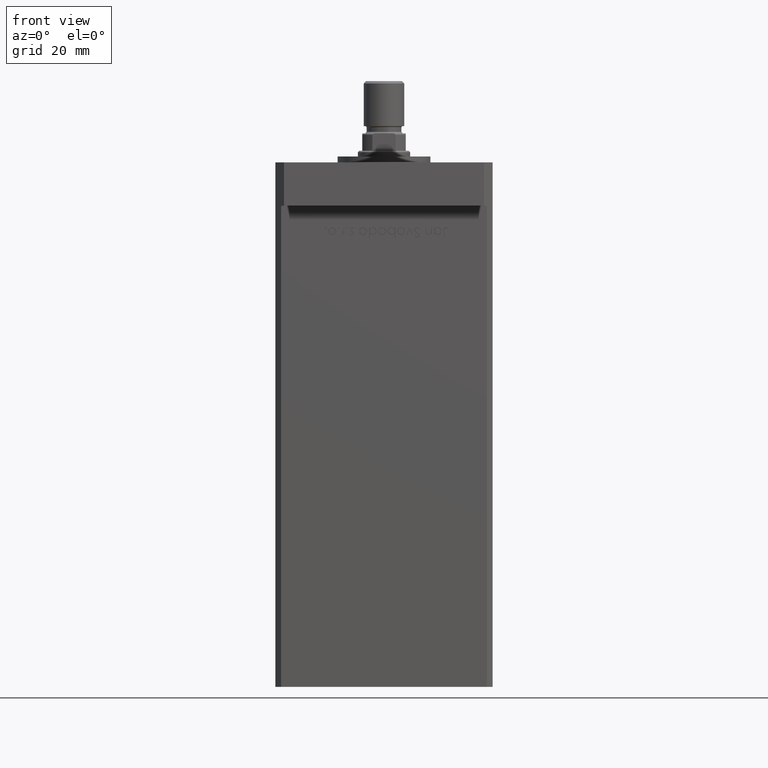
[diagram: clean part render]
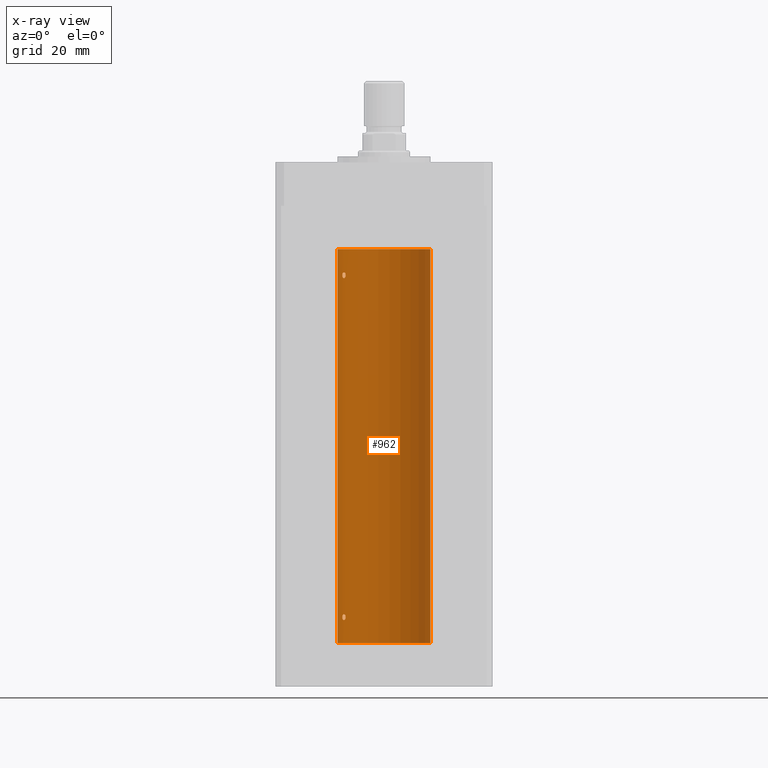
[diagram: x-ray — body ghosted, one internal face saturated and labeled with its STEP entity id]
A machine part, front view, then the same camera in x-ray: the body is ghosted and one INTERNAL B-rep face — a face not visible from any outside direction — is saturated and labeled: STEP entity #962.
In plain terms, the highlighted cylindrical surface (partial cylindrical patch) has radius 16 mm, axis along (-0, -0, -1).
Its self-contained STEP definition (entity closure, byte-faithful):
#52 = DIRECTION ( 'NONE',  ( -1.000000000000000000, 0.000000000000000000, 0.000000000000000000 ) ) ;
#415 = EDGE_LOOP ( 'NONE', ( #49385, #48213 ) ) ;
#584 = FACE_OUTER_BOUND ( 'NONE', #13788, .T. ) ;
#811 = CARTESIAN_POINT ( 'NONE',  ( -13.77582987033440709, 8.139210687602719929, 126.0021105458418162 ) ) ;
#962 = ADVANCED_FACE ( 'NONE', ( #584, #41848, #43123 ), #53876, .F. ) ;
#1688 = CARTESIAN_POINT ( 'NONE',  ( -13.24976519864029179, 8.969293778684573226, 127.2815352263351514 ) ) ;
#2091 = EDGE_CURVE ( 'NONE', #31538, #31573, #11436, .T. ) ;
#2484 = CARTESIAN_POINT ( 'NONE',  ( -13.22875655532296157, 8.999999999999994671, 127.1406447609177661 ) ) ;
#4109 = CARTESIAN_POINT ( 'NONE',  ( -13.22875655532295625, 8.999999999999994671, 126.9295656223616220 ) ) ;
#4781 = CARTESIAN_POINT ( 'NONE',  ( -14.38749456993816445, 6.999999999999997335, 9.142625441524202756 ) ) ;
#5023 = CARTESIAN_POINT ( 'NONE',  ( -14.37250282441143767, 7.031013007322936659, 8.716856996037261496 ) ) ;
#5185 = CARTESIAN_POINT ( 'NONE',  ( -13.49759407097375075, 8.592283911330223845, 126.1840991521276862 ) ) ;
#5568 = CARTESIAN_POINT ( 'NONE',  ( -14.27547848986622014, 7.226527013162185931, 8.352555730181528304 ) ) ;
#5788 = CARTESIAN_POINT ( 'NONE',  ( -14.27521483392928836, 7.227035590538638310, 127.6478598706881371 ) ) ;
#5850 = CARTESIAN_POINT ( 'NONE',  ( -13.70481462797718031, 8.258098555717506173, 8.025997477291133109 ) ) ;
#6597 = CARTESIAN_POINT ( 'NONE',  ( -13.37741691572086111, 8.778212469423007036, 127.6408828602271512 ) ) ;
#7414 = EDGE_CURVE ( 'NONE', #31391, #25424, #52723, .T. ) ;
#7662 = DIRECTION ( 'NONE',  ( -0.000000000000000000, -0.000000000000000000, -1.000000000000000000 ) ) ;
#8481 = CARTESIAN_POINT ( 'NONE',  ( -13.32426099938365383, 8.858246960865844954, 126.4688748775329969 ) ) ;
#8787 = CARTESIAN_POINT ( 'NONE',  ( 0.000000000000000000, 0.000000000000000000, 136.0000000000000000 ) ) ;
#8890 = CARTESIAN_POINT ( 'NONE',  ( -13.91892506969882959, 7.891973478508852224, 10.00155212263243953 ) ) ;
#9018 = CARTESIAN_POINT ( 'NONE',  ( -13.91838063522421010, 7.892966471903945624, 125.9981483133086897 ) ) ;
#9131 = CARTESIAN_POINT ( 'NONE',  ( -13.98699950016872151, 7.770591669637119558, 8.018476816648481886 ) ) ;
#9335 = EDGE_CURVE ( 'NONE', #25424, #31391, #44169, .T. ) ;
#9585 = AXIS2_PLACEMENT_3D ( 'NONE', #33535, #22591, #51263 ) ;
#9675 = CARTESIAN_POINT ( 'NONE',  ( -13.26838749541400198, 8.941532915076040311, 8.656217793921369363 ) ) ;
#11436 = B_SPLINE_CURVE_WITH_KNOTS ( 'NONE', 3,
 ( #35548, #2484, #1688, #27099, #6597, #35288, #47039, #51953, #26282, #43760, #39391, #5788, #14529, #35822, #30917, #39647 ),
 .UNSPECIFIED., .F., .F.,
 ( 4, 2, 2, 2, 2, 2, 2, 4 ),
 ( 0.003377672193071779884, 0.003799209865779855366, 0.004220747538487930849, 0.005063822883904134722, 0.005485360556612237093, 0.005906898229320339463, 0.006328435902028442701, 0.006749973574736545072 ),
 .UNSPECIFIED. ) ;
#11824 = CARTESIAN_POINT ( 'NONE',  ( -16.00000000000000000, 0.000000000000000000, 136.0000000000000000 ) ) ;
#12642 = CARTESIAN_POINT ( 'NONE',  ( -14.38749456993815912, 6.999999999999998224, 127.0000000000000000 ) ) ;
#12830 = CARTESIAN_POINT ( 'NONE',  ( 16.00000000000000000, 1.959434878635765131E-15, 136.0000000000000000 ) ) ;
#13075 = LINE ( 'NONE', #45869, #25133 ) ;
#13116 = CARTESIAN_POINT ( 'NONE',  ( -14.38749456993815912, 6.999999999999998224, 127.0000000000000000 ) ) ;
#13788 = EDGE_LOOP ( 'NONE', ( #33389, #29757, #31555, #44556 ) ) ;
#14051 = CARTESIAN_POINT ( 'NONE',  ( -14.11621438951177332, 7.533308783217010252, 8.106571071839512754 ) ) ;
#14529 = CARTESIAN_POINT ( 'NONE',  ( -14.31650799088418147, 7.144337649771908438, 127.5355226273736662 ) ) ;
#14589 = CARTESIAN_POINT ( 'NONE',  ( -13.32426099938365027, 8.858246960865852060, 8.468874877532968526 ) ) ;
#16280 = CARTESIAN_POINT ( 'NONE',  ( -13.22875655532295447, 8.999999999999996447, 9.000000000000000000 ) ) ;
#16611 = VERTEX_POINT ( 'NONE', #12830 ) ;
#16952 = CARTESIAN_POINT ( 'NONE',  ( -13.25390108270225120, 8.962947079338391632, 126.7214357623584817 ) ) ;
#18148 = CARTESIAN_POINT ( 'NONE',  ( -13.56386909142669950, 8.487613976483636691, 8.118224297996075478 ) ) ;
#18425 = CARTESIAN_POINT ( 'NONE',  ( -13.25390108270225298, 8.962947079338388079, 8.721435762358455079 ) ) ;
#19026 = CARTESIAN_POINT ( 'NONE',  ( -14.38749456993815912, 6.999999999999997335, 9.000000000000000000 ) ) ;
#19289 = DIRECTION ( 'NONE',  ( -0.000000000000000000, 0.000000000000000000, 1.000000000000000000 ) ) ;
#20925 = CARTESIAN_POINT ( 'NONE',  ( -13.70792461986390620, 8.256614593260307444, 9.996621535642271184 ) ) ;
#21064 = CARTESIAN_POINT ( 'NONE',  ( -14.27547848986622370, 7.226527013162184154, 126.3525557301815354 ) ) ;
#21190 = CARTESIAN_POINT ( 'NONE',  ( -13.37741691572085934, 8.778212469423014142, 9.640882860227099727 ) ) ;
#21698 = CARTESIAN_POINT ( 'NONE',  ( -13.77582987033441064, 8.139210687602712824, 8.002110545841816247 ) ) ;
#21852 = CARTESIAN_POINT ( 'NONE',  ( -13.26838749541400908, 8.941532915076043864, 126.6562177939213854 ) ) ;
#22591 = DIRECTION ( 'NONE',  ( -0.000000000000000000, 0.000000000000000000, 1.000000000000000000 ) ) ;
#22875 = B_SPLINE_CURVE_WITH_KNOTS ( 'NONE', 3,
 ( #13116, #29781, #46440, #24895, #21064, #37726, #33078, #29249, #9018, #811, #42338, #42607, #5185, #45912, #8481, #21852, #16952, #41539, #4109, #25167 ),
 .UNSPECIFIED., .F., .F.,
 ( 4, 2, 2, 2, 2, 2, 2, 2, 2, 4 ),
 ( 0.000000000000000000, 0.0004222090241339633240, 0.0008444180482679266480, 0.001266627072401889809, 0.001688836096535853296, 0.002111045120669816783, 0.002533254144803779619, 0.002955463168937742888, 0.003166567681004761603, 0.003377672193071779884 ),
 .UNSPECIFIED. ) ;
#23202 = CARTESIAN_POINT ( 'NONE',  ( 16.00000000000000000, 1.959434878635765131E-15, 0.000000000000000000 ) ) ;
#24757 = ORIENTED_EDGE ( 'NONE', *, *, #2091, .F. ) ;
#24895 = CARTESIAN_POINT ( 'NONE',  ( -14.31660136508398828, 7.144151923086063505, 126.4646217954444580 ) ) ;
#25037 = CARTESIAN_POINT ( 'NONE',  ( -14.31650799088418324, 7.144337649771912879, 9.535522627373689275 ) ) ;
#25123 = DIRECTION ( 'NONE',  ( -0.000000000000000000, -0.000000000000000000, -1.000000000000000000 ) ) ;
#25133 = VECTOR ( 'NONE', #25123, 1000.000000000000000 ) ;
#25167 = CARTESIAN_POINT ( 'NONE',  ( -13.22875655532295802, 8.999999999999996447, 127.0000000000000000 ) ) ;
#25424 = VERTEX_POINT ( 'NONE', #42011 ) ;
#25819 = CARTESIAN_POINT ( 'NONE',  ( -13.55800260393082546, 8.498809056167521803, 9.903643446210175227 ) ) ;
#26282 = CARTESIAN_POINT ( 'NONE',  ( -13.98878315975728803, 7.767347947480344850, 127.9805461432612645 ) ) ;
#26344 = CARTESIAN_POINT ( 'NONE',  ( -14.31660136508399184, 7.144151923086058176, 8.464621795444474017 ) ) ;
#27099 = CARTESIAN_POINT ( 'NONE',  ( -13.32457971225032622, 8.857769707964648020, 127.5319996627465571 ) ) ;
#29020 = DIRECTION ( 'NONE',  ( -0.000000000000000000, -0.000000000000000000, -1.000000000000000000 ) ) ;
#29249 = CARTESIAN_POINT ( 'NONE',  ( -13.98699950016872151, 7.770591669637114229, 126.0184768166484588 ) ) ;
#29388 = CARTESIAN_POINT ( 'NONE',  ( -13.24976519864029179, 8.969293778684576779, 9.281535226335156707 ) ) ;
#29757 = ORIENTED_EDGE ( 'NONE', *, *, #43268, .T. ) ;
#29781 = CARTESIAN_POINT ( 'NONE',  ( -14.38749456993816267, 6.999999999999999112, 126.8571474096354450 ) ) ;
#30711 = CARTESIAN_POINT ( 'NONE',  ( -13.91838063522420832, 7.892966471903941184, 7.998148313308679036 ) ) ;
#30917 = CARTESIAN_POINT ( 'NONE',  ( -14.38749456993815734, 6.999999999999997335, 127.1426254415242454 ) ) ;
#31007 = CIRCLE ( 'NONE', #43213, 16.00000000000000000 ) ;
#31249 = CARTESIAN_POINT ( 'NONE',  ( -13.22875655532295447, 8.999999999999996447, 9.000000000000000000 ) ) ;
#31391 = VERTEX_POINT ( 'NONE', #19026 ) ;
#31538 = VERTEX_POINT ( 'NONE', #42933 ) ;
#31555 = ORIENTED_EDGE ( 'NONE', *, *, #34973, .T. ) ;
#31573 = VERTEX_POINT ( 'NONE', #12642 ) ;
#31752 = EDGE_CURVE ( 'NONE', #16611, #35381, #41254, .T. ) ;
#32035 = ORIENTED_EDGE ( 'NONE', *, *, #33043, .F. ) ;
#32943 = CARTESIAN_POINT ( 'NONE',  ( -13.98878315975729159, 7.767347947480346626, 9.980546143261280534 ) ) ;
#33043 = EDGE_CURVE ( 'NONE', #31573, #31538, #22875, .T. ) ;
#33078 = CARTESIAN_POINT ( 'NONE',  ( -14.11621438951177687, 7.533308783217008475, 126.1065710718394826 ) ) ;
#33389 = ORIENTED_EDGE ( 'NONE', *, *, #31752, .F. ) ;
#33535 = CARTESIAN_POINT ( 'NONE',  ( 0.000000000000000000, 0.000000000000000000, 136.0000000000000000 ) ) ;
#34800 = CARTESIAN_POINT ( 'NONE',  ( -13.22875655532295092, 8.999999999999994671, 8.929565622361636201 ) ) ;
#34973 = EDGE_CURVE ( 'NONE', #42892, #36695, #13075, .T. ) ;
#35288 = CARTESIAN_POINT ( 'NONE',  ( -13.55800260393081835, 8.498809056167509368, 127.9036434462101681 ) ) ;
#35350 = CARTESIAN_POINT ( 'NONE',  ( -14.38749456993815556, 6.999999999999997335, 8.857147409635411250 ) ) ;
#35381 = VERTEX_POINT ( 'NONE', #23202 ) ;
#35548 = CARTESIAN_POINT ( 'NONE',  ( -13.22875655532295802, 8.999999999999996447, 127.0000000000000000 ) ) ;
#35822 = CARTESIAN_POINT ( 'NONE',  ( -14.37227256866306213, 7.031482256185711321, 127.2844572409764794 ) ) ;
#36695 = VERTEX_POINT ( 'NONE', #50479 ) ;
#36755 = DIRECTION ( 'NONE',  ( 1.000000000000000000, 0.000000000000000000, 0.000000000000000000 ) ) ;
#37047 = CARTESIAN_POINT ( 'NONE',  ( -14.37227256866306213, 7.031482256185707769, 9.284457240976479397 ) ) ;
#37726 = CARTESIAN_POINT ( 'NONE',  ( -14.17528142432533755, 7.421143801852455368, 126.1739430735386520 ) ) ;
#37850 = CARTESIAN_POINT ( 'NONE',  ( -14.17576283486774535, 7.420212263225985261, 9.825253034304354927 ) ) ;
#38116 = CARTESIAN_POINT ( 'NONE',  ( -14.38749456993815912, 6.999999999999997335, 9.000000000000000000 ) ) ;
#38363 = CARTESIAN_POINT ( 'NONE',  ( -13.23400746336172951, 8.992294519018086518, 8.857814559023015732 ) ) ;
#38624 = CARTESIAN_POINT ( 'NONE',  ( -13.49759407097374897, 8.592283911330223845, 8.184099152127670251 ) ) ;
#39391 = CARTESIAN_POINT ( 'NONE',  ( -14.17576283486774891, 7.420212263225987925, 127.8252530343043958 ) ) ;
#39647 = CARTESIAN_POINT ( 'NONE',  ( -14.38749456993815912, 6.999999999999998224, 127.0000000000000000 ) ) ;
#41254 = LINE ( 'NONE', #49451, #47709 ) ;
#41539 = CARTESIAN_POINT ( 'NONE',  ( -13.23400746336172240, 8.992294519018086518, 126.8578145590230406 ) ) ;
#41834 = CIRCLE ( 'NONE', #9585, 16.00000000000000000 ) ;
#41848 = FACE_BOUND ( 'NONE', #415, .T. ) ;
#42011 = CARTESIAN_POINT ( 'NONE',  ( -13.22875655532295447, 8.999999999999996447, 9.000000000000000000 ) ) ;
#42206 = CARTESIAN_POINT ( 'NONE',  ( -14.27521483392929014, 7.227035590538633869, 9.647859870688195727 ) ) ;
#42338 = CARTESIAN_POINT ( 'NONE',  ( -13.70481462797717676, 8.258098555717509726, 126.0259974772911562 ) ) ;
#42607 = CARTESIAN_POINT ( 'NONE',  ( -13.56386909142669772, 8.487613976483636691, 126.1182242979960790 ) ) ;
#42892 = VERTEX_POINT ( 'NONE', #11824 ) ;
#42933 = CARTESIAN_POINT ( 'NONE',  ( -13.22875655532295802, 8.999999999999996447, 127.0000000000000000 ) ) ;
#43123 = FACE_BOUND ( 'NONE', #52668, .T. ) ;
#43213 = AXIS2_PLACEMENT_3D ( 'NONE', #44948, #19289, #36755 ) ;
#43268 = EDGE_CURVE ( 'NONE', #16611, #42892, #41834, .T. ) ;
#43760 = CARTESIAN_POINT ( 'NONE',  ( -14.11618354197461400, 7.533333301880474231, 127.8932076519334373 ) ) ;
#44169 = B_SPLINE_CURVE_WITH_KNOTS ( 'NONE', 3,
 ( #16280, #46315, #29388, #49875, #21190, #25819, #20925, #8890, #32943, #50140, #37850, #42206, #25037, #37047, #4781, #38116 ),
 .UNSPECIFIED., .F., .F.,
 ( 4, 2, 2, 2, 2, 2, 2, 4 ),
 ( 0.003377672193071777282, 0.003799209865779874882, 0.004220747538487972482, 0.005063822883904168549, 0.005485360556612268318, 0.005906898229320367219, 0.006328435902028466120, 0.006749973574736565889 ),
 .UNSPECIFIED. ) ;
#44556 = ORIENTED_EDGE ( 'NONE', *, *, #50431, .F. ) ;
#44948 = CARTESIAN_POINT ( 'NONE',  ( 0.000000000000000000, 0.000000000000000000, 0.000000000000000000 ) ) ;
#45869 = CARTESIAN_POINT ( 'NONE',  ( -16.00000000000000000, 0.000000000000000000, 136.0000000000000000 ) ) ;
#45912 = CARTESIAN_POINT ( 'NONE',  ( -13.37674940693422876, 8.779234808442867077, 126.3602441571267718 ) ) ;
#46046 = AXIS2_PLACEMENT_3D ( 'NONE', #8787, #29020, #52 ) ;
#46315 = CARTESIAN_POINT ( 'NONE',  ( -13.22875655532295447, 8.999999999999996447, 9.140644760917734146 ) ) ;
#46440 = CARTESIAN_POINT ( 'NONE',  ( -14.37250282441143945, 7.031013007322939323, 126.7168569960372935 ) ) ;
#47039 = CARTESIAN_POINT ( 'NONE',  ( -13.70792461986390798, 8.256614593260307444, 127.9966215356423191 ) ) ;
#47371 = CARTESIAN_POINT ( 'NONE',  ( -13.37674940693422521, 8.779234808442870630, 8.360244157126784259 ) ) ;
#47645 = CARTESIAN_POINT ( 'NONE',  ( -14.38749456993815912, 6.999999999999997335, 9.000000000000000000 ) ) ;
#47709 = VECTOR ( 'NONE', #7662, 1000.000000000000000 ) ;
#48213 = ORIENTED_EDGE ( 'NONE', *, *, #9335, .F. ) ;
#49385 = ORIENTED_EDGE ( 'NONE', *, *, #7414, .F. ) ;
#49451 = CARTESIAN_POINT ( 'NONE',  ( 16.00000000000000000, 1.959434878635765131E-15, 136.0000000000000000 ) ) ;
#49875 = CARTESIAN_POINT ( 'NONE',  ( -13.32457971225032445, 8.857769707964649797, 9.531999662746555302 ) ) ;
#50140 = CARTESIAN_POINT ( 'NONE',  ( -14.11618354197461400, 7.533333301880478672, 9.893207651933416003 ) ) ;
#50431 = EDGE_CURVE ( 'NONE', #35381, #36695, #31007, .T. ) ;
#50479 = CARTESIAN_POINT ( 'NONE',  ( -16.00000000000000000, 0.000000000000000000, 0.000000000000000000 ) ) ;
#51188 = CARTESIAN_POINT ( 'NONE',  ( -14.17528142432533755, 7.421143801852455368, 8.173943073538659121 ) ) ;
#51263 = DIRECTION ( 'NONE',  ( 1.000000000000000000, 0.000000000000000000, 0.000000000000000000 ) ) ;
#51953 = CARTESIAN_POINT ( 'NONE',  ( -13.91892506969882071, 7.891973478508848672, 128.0015521226323472 ) ) ;
#52668 = EDGE_LOOP ( 'NONE', ( #32035, #24757 ) ) ;
#52723 = B_SPLINE_CURVE_WITH_KNOTS ( 'NONE', 3,
 ( #47645, #35350, #5023, #26344, #5568, #51188, #14051, #9131, #30711, #21698, #5850, #18148, #38624, #47371, #14589, #9675, #18425, #38363, #34800, #31249 ),
 .UNSPECIFIED., .F., .F.,
 ( 4, 2, 2, 2, 2, 2, 2, 2, 2, 4 ),
 ( 0.000000000000000000, 0.0004222090241339719976, 0.0008444180482679439952, 0.001266627072401915830, 0.001688836096535887990, 0.002111045120669860151, 0.002533254144803831660, 0.002955463168937803604, 0.003166567681004790660, 0.003377672193071777282 ),
 .UNSPECIFIED. ) ;
#53876 = CYLINDRICAL_SURFACE ( 'NONE', #46046, 16.00000000000000000 ) ;